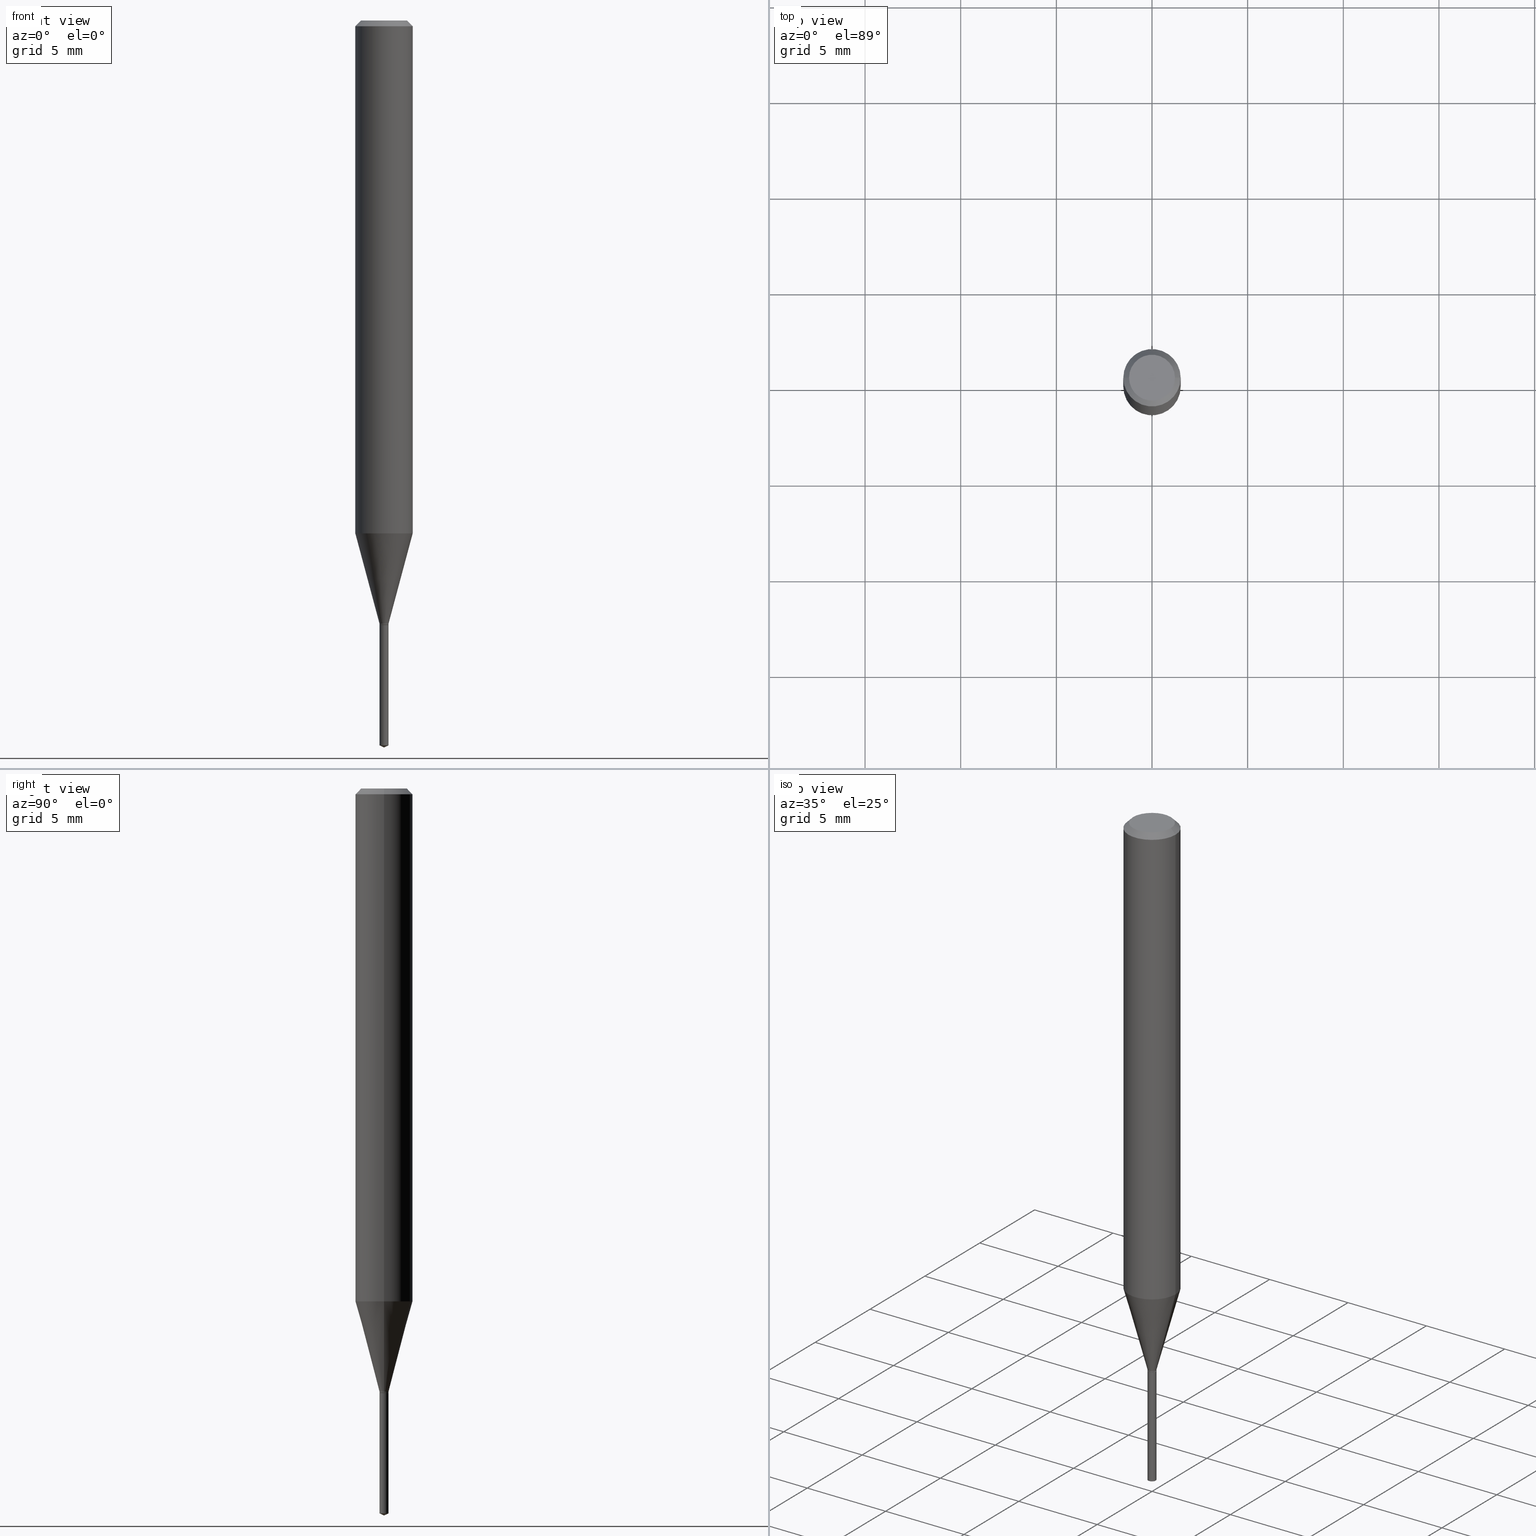
[diagram: canonical four-view strip — front | top / right | iso, engineering-drawing reading convention]
A machine part, canonical four-view strip (front | top / right | iso — engineering-drawing reading convention). The complete STEP part file that produces these views, byte-faithful:
ISO-10303-21;
HEADER;
FILE_DESCRIPTION (( 'STEP AP203' ),
    '1' );
FILE_NAME ('08271.STEP',
    '2024-04-24T14:01:58',
    ( '' ),
    ( '' ),
    'SwSTEP 2.0',
    'SolidWorks 2023',
    '' );
FILE_SCHEMA (( 'CONFIG_CONTROL_DESIGN' ));
ENDSEC;

DATA;
#1 = EDGE_CURVE ( 'NONE', #12, #188, #449, .T. ) ;
#2 = CARTESIAN_POINT ( 'NONE',  ( 3.042407741774928155E-29, -4.343751933654757151E-15, -1.244099999999999984 ) ) ;
#3 = MANIFOLD_SOLID_BREP ( 'Body-Move/Copy2[1]', #111 ) ;
#4 = ORIENTED_EDGE ( 'NONE', *, *, #333, .F. ) ;
#5 = DIRECTION ( 'NONE',  ( -6.982962677686266711E-15, -1.000000000000000000, 0.000000000000000000 ) ) ;
#6 = AXIS2_PLACEMENT_3D ( 'NONE', #260, #420, #303 ) ;
#7 = ORIENTED_EDGE ( 'NONE', *, *, #471, .F. ) ;
#8 = CIRCLE ( 'NONE', #466, 0.009249999999999999542 ) ;
#9 = ORIENTED_EDGE ( 'NONE', *, *, #266, .F. ) ;
#10 = LINE ( 'NONE', #13, #312 ) ;
#11 = CARTESIAN_POINT ( 'NONE',  ( 0.000000000000000000, 0.000000000000000000, 0.000000000000000000 ) ) ;
#12 = VERTEX_POINT ( 'NONE', #73 ) ;
#13 = CARTESIAN_POINT ( 'NONE',  ( 0.05904999999999999832, -4.463468013801466955E-16, -0.01181000000000007218 ) ) ;
#14 = CARTESIAN_POINT ( 'NONE',  ( 3.654531458052439160E-29, -5.229525959925762998E-15, -1.496099999999999985 ) ) ;
#15 = ORIENTED_EDGE ( 'NONE', *, *, #207, .T. ) ;
#16 = CARTESIAN_POINT ( 'NONE',  ( 0.05905000000000006771, -4.123439461173745257E-16, 2.879382386107503723E-30 ) ) ;
#17 = EDGE_LOOP ( 'NONE', ( #152, #402, #427, #469 ) ) ;
#18 = AXIS2_PLACEMENT_3D ( 'NONE', #366, #323, #478 ) ;
#19 = EDGE_LOOP ( 'NONE', ( #186, #131, #4, #264 ) ) ;
#20 = CIRCLE ( 'NONE', #403, 0.05905000000000013710 ) ;
#21 = DIRECTION ( 'NONE',  ( 1.000000000000000000, -6.982962677686266711E-15, 4.876185090822587894E-29 ) ) ;
#22 = EDGE_CURVE ( 'NONE', #396, #87, #117, .T. ) ;
#23 = DIRECTION ( 'NONE',  ( 1.000000000000000000, -6.982962677686266711E-15, 4.876176775795935232E-29 ) ) ;
#24 = DESIGN_CONTEXT ( 'detailed design', #281, 'design' ) ;
#25 = DIRECTION ( 'NONE',  ( 2.445468806185136597E-29, -3.491481338843145583E-15, -1.000000000000000000 ) ) ;
#26 = PERSON_AND_ORGANIZATION ( #231, #199 ) ;
#27 = EDGE_CURVE ( 'NONE', #361, #12, #263, .T. ) ;
#28 = VECTOR ( 'NONE', #297, 39.37007874015748854 ) ;
#29 = LINE ( 'NONE', #432, #334 ) ;
#30 = DIRECTION ( 'NONE',  ( -2.445468806185136597E-29, 3.491481338843145583E-15, 1.000000000000000000 ) ) ;
#31 = LINE ( 'NONE', #176, #233 ) ;
#32 = CIRCLE ( 'NONE', #404, 0.04724000000000000421 ) ;
#33 = APPROVAL ( #179, 'UNSPECIFIED' ) ;
#34 = FACE_OUTER_BOUND ( 'NONE', #84, .T. ) ;
#35 = APPROVAL ( #78, 'UNSPECIFIED' ) ;
#36 = DIRECTION ( 'NONE',  ( -2.442705339250343681E-29, 3.495438780780538895E-15, 1.000000000000000000 ) ) ;
#37 = CARTESIAN_POINT ( 'NONE',  ( 2.888098660104664204E-31, -4.123439461173780263E-17, -0.01181000000000007218 ) ) ;
#38 = ORIENTED_EDGE ( 'NONE', *, *, #275, .F. ) ;
#39 = PERSON_AND_ORGANIZATION_ROLE ( 'design_supplier' ) ;
#40 = DIRECTION ( 'NONE',  ( 1.000000000000000000, -6.982962677686250144E-15, 0.000000000000000000 ) ) ;
#41 = CARTESIAN_POINT ( 'NONE',  ( -0.008749999999999999098, -4.278930217101637721E-15, -1.244099999999999984 ) ) ;
#42 = AXIS2_PLACEMENT_3D ( 'NONE', #425, #235, #49 ) ;
#43 = ORIENTED_EDGE ( 'NONE', *, *, #333, .T. ) ;
#44 = CONICAL_SURFACE ( 'NONE', #170, 84.42940631927274353, 1.134464013796308679 ) ;
#45 = ADVANCED_FACE ( 'NONE', ( #77 ), #349, .T. ) ;
#46 = LOCAL_TIME ( 10, 1, 58.00000000000000000, #384 ) ;
#47 = ORIENTED_EDGE ( 'NONE', *, *, #213, .T. ) ;
#48 = CARTESIAN_POINT ( 'NONE',  ( 3.035560429117610036E-29, -4.333975785905995943E-15, -1.241299999999999848 ) ) ;
#49 = DIRECTION ( 'NONE',  ( 6.982962677686265922E-15, 1.000000000000000000, -3.495438780780538501E-15 ) ) ;
#50 = ORIENTED_EDGE ( 'NONE', *, *, #448, .T. ) ;
#51 =( NAMED_UNIT ( * ) PLANE_ANGLE_UNIT ( ) SI_UNIT ( $, .RADIAN. ) );
#52 = ORIENTED_EDGE ( 'NONE', *, *, #22, .T. ) ;
#53 = ORIENTED_EDGE ( 'NONE', *, *, #426, .T. ) ;
#54 = DIRECTION ( 'NONE',  ( -2.445468806185136877E-29, 3.491481338843145188E-15, 1.000000000000000000 ) ) ;
#55 = ADVANCED_FACE ( 'NONE', ( #462 ), #121, .F. ) ;
#56 = VERTEX_POINT ( 'NONE', #352 ) ;
#57 = PRODUCT_DEFINITION_FORMATION_WITH_SPECIFIED_SOURCE ( 'ANY', '', #386, .NOT_KNOWN. ) ;
#58 = CARTESIAN_POINT ( 'NONE',  ( 3.654531458052439160E-29, -5.229525959925763787E-15, -1.496099999999999985 ) ) ;
#59 = AXIS2_PLACEMENT_3D ( 'NONE', #249, #214, #414 ) ;
#60 = CIRCLE ( 'NONE', #438, 0.05904999999999999832 ) ;
#61 = DIRECTION ( 'NONE',  ( -6.982962677686266711E-15, -1.000000000000000000, 3.520397390770520529E-15 ) ) ;
#62 = ADVANCED_FACE ( 'NONE', ( #161 ), #310, .T. ) ;
#63 = DIRECTION ( 'NONE',  ( 1.000000000000000000, -6.982962677686254089E-15, 0.000000000000000000 ) ) ;
#64 = CIRCLE ( 'NONE', #92, 0.04724000000000000421 ) ;
#65 = CARTESIAN_POINT ( 'NONE',  ( 0.008749999999999999098, -4.404852857084512143E-15, -1.244099999999999984 ) ) ;
#66 = APPLICATION_PROTOCOL_DEFINITION ( 'international standard', 'config_control_design', 1994, #281 ) ;
#67 = CC_DESIGN_PERSON_AND_ORGANIZATION_ASSIGNMENT ( #100, #444, ( #102 ) ) ;
#68 = CARTESIAN_POINT ( 'NONE',  ( 3.035560429117610036E-29, -4.333975785905995943E-15, -1.241299999999999848 ) ) ;
#69 = DATE_AND_TIME ( #143, #258 ) ;
#70 = DIRECTION ( 'NONE',  ( -2.445468806185136877E-29, 3.491481338843145188E-15, 1.000000000000000000 ) ) ;
#71 = VECTOR ( 'NONE', #54, 39.37007874015748143 ) ;
#72 = CARTESIAN_POINT ( 'NONE',  ( 8.265746106709734507E-48, -1.180129479067563789E-33, -3.380025165646692144E-19 ) ) ;
#73 = CARTESIAN_POINT ( 'NONE',  ( 6.572520305784577341E-17, 0.009249999999995654060, -1.244099999999999984 ) ) ;
#74 = ORIENTED_EDGE ( 'NONE', *, *, #22, .F. ) ;
#75 = DIRECTION ( 'NONE',  ( 1.000000000000000000, -6.982962677686306154E-15, 0.000000000000000000 ) ) ;
#76 = EDGE_CURVE ( 'NONE', #155, #118, #29, .T. ) ;
#77 = FACE_OUTER_BOUND ( 'NONE', #156, .T. ) ;
#78 = APPROVAL_STATUS ( 'not_yet_approved' ) ;
#79 = EDGE_LOOP ( 'NONE', ( #9, #230, #363, #135 ) ) ;
#80 = DIRECTION ( 'NONE',  ( -1.000000000000000000, 6.982962677686266711E-15, 0.000000000000000000 ) ) ;
#81 = CIRCLE ( 'NONE', #126, 0.009249999999999999542 ) ;
#82 = DATE_TIME_ROLE ( 'classification_date' ) ;
#83 =( GEOMETRIC_REPRESENTATION_CONTEXT ( 3 ) GLOBAL_UNCERTAINTY_ASSIGNED_CONTEXT ( ( #204 ) ) GLOBAL_UNIT_ASSIGNED_CONTEXT ( ( #239, #51, #242 ) ) REPRESENTATION_CONTEXT ( 'NONE', 'WORKASPACE' ) );
#84 = EDGE_LOOP ( 'NONE', ( #315, #52, #38 ) ) ;
#85 = CARTESIAN_POINT ( 'NONE',  ( 3.041185007371835914E-29, -4.342006192985336437E-15, -1.243600000000000039 ) ) ;
#86 = VERTEX_POINT ( 'NONE', #168 ) ;
#87 = VERTEX_POINT ( 'NONE', #319 ) ;
#88 = ADVANCED_FACE ( 'NONE', ( #475 ), #283, .F. ) ;
#89 = VERTEX_POINT ( 'NONE', #442 ) ;
#90 = DIRECTION ( 'NONE',  ( -0.7071067811865453523, 2.468850131082234184E-15, -0.7071067811865496822 ) ) ;
#91 = ORIENTED_EDGE ( 'NONE', *, *, #443, .F. ) ;
#92 = AXIS2_PLACEMENT_3D ( 'NONE', #196, #278, #21 ) ;
#93 = CARTESIAN_POINT ( 'NONE',  ( 0.000000000000000000, 0.000000000000000000, 0.000000000000000000 ) ) ;
#94 = EDGE_LOOP ( 'NONE', ( #139, #220 ) ) ;
#95 = CARTESIAN_POINT ( 'NONE',  ( -0.009249999999999999542, -4.268250582848186814E-15, -1.241299999999999848 ) ) ;
#96 = ADVANCED_FACE ( 'NONE', ( #289 ), #269, .T. ) ;
#97 = ORIENTED_EDGE ( 'NONE', *, *, #370, .T. ) ;
#98 = VECTOR ( 'NONE', #108, 39.37007874015748143 ) ;
#99 = CONICAL_SURFACE ( 'NONE', #450, 0.05904999999999999832, 0.7853981633974452814 ) ;
#100 = PERSON_AND_ORGANIZATION ( #231, #199 ) ;
#101 = CARTESIAN_POINT ( 'NONE',  ( -0.04724000000000000421, 3.504923541997677355E-16, -3.380025165670481712E-19 ) ) ;
#102 = PRODUCT_DEFINITION ( 'UNKNOWN', '', #57, #24 ) ;
#103 = LINE ( 'NONE', #294, #98 ) ;
#104 = CARTESIAN_POINT ( 'NONE',  ( 3.042407741774928155E-29, -4.343751933654757151E-15, -1.244099999999999984 ) ) ;
#105 = LOCAL_TIME ( 10, 1, 58.00000000000000000, #413 ) ;
#106 = ADVANCED_FACE ( 'NONE', ( #486 ), #488, .T. ) ;
#107 = APPROVAL_ROLE ( '' ) ;
#108 = DIRECTION ( 'NONE',  ( -2.445468806185136877E-29, 3.491481338843145188E-15, 1.000000000000000000 ) ) ;
#109 = LINE ( 'NONE', #387, #175 ) ;
#110 = DIRECTION ( 'NONE',  ( -2.445468806185136597E-29, 3.491481338843145583E-15, 1.000000000000000000 ) ) ;
#111 = CLOSED_SHELL ( 'NONE', ( #256, #201, #151, #383, #55 ) ) ;
#112 = ORIENTED_EDGE ( 'NONE', *, *, #327, .F. ) ;
#113 = DATE_AND_TIME ( #457, #46 ) ;
#114 = ORIENTED_EDGE ( 'NONE', *, *, #370, .F. ) ;
#115 = EDGE_CURVE ( 'NONE', #118, #89, #103, .T. ) ;
#116 = FACE_OUTER_BOUND ( 'NONE', #313, .T. ) ;
#117 = LINE ( 'NONE', #14, #205 ) ;
#118 = VERTEX_POINT ( 'NONE', #481 ) ;
#119 = DIRECTION ( 'NONE',  ( 2.445468806185136597E-29, -3.491481338843145583E-15, -1.000000000000000000 ) ) ;
#120 = APPLICATION_CONTEXT ( 'configuration controlled 3d designs of mechanical parts and assemblies' ) ;
#121 = PLANE ( 'NONE',  #42 ) ;
#122 = SECURITY_CLASSIFICATION_LEVEL ( 'unclassified' ) ;
#123 = VERTEX_POINT ( 'NONE', #101 ) ;
#124 = DIRECTION ( 'NONE',  ( -2.445468806185136597E-29, 3.491481338843145583E-15, 1.000000000000000000 ) ) ;
#125 = CONICAL_SURFACE ( 'NONE', #163, 0.008749999999999999098, 0.7853981633975496424 ) ;
#126 = AXIS2_PLACEMENT_3D ( 'NONE', #142, #292, #429 ) ;
#127 = CC_DESIGN_PERSON_AND_ORGANIZATION_ASSIGNMENT ( #267, #224, ( #428 ) ) ;
#128 = AXIS2_PLACEMENT_3D ( 'NONE', #416, #391, #309 ) ;
#129 = VERTEX_POINT ( 'NONE', #324 ) ;
#130 = DIRECTION ( 'NONE',  ( -6.982962677686266711E-15, -1.000000000000000000, 0.000000000000000000 ) ) ;
#131 = ORIENTED_EDGE ( 'NONE', *, *, #401, .T. ) ;
#132 = DIRECTION ( 'NONE',  ( -2.442705339250343681E-29, 3.495438780780538895E-15, 1.000000000000000000 ) ) ;
#133 = AXIS2_PLACEMENT_3D ( 'NONE', #11, #158, #307 ) ;
#134 = ADVANCED_FACE ( 'NONE', ( #215 ), #125, .T. ) ;
#135 = ORIENTED_EDGE ( 'NONE', *, *, #364, .F. ) ;
#136 = DIRECTION ( 'NONE',  ( 1.000000000000000000, -6.982962677686254089E-15, 0.000000000000000000 ) ) ;
#137 = CARTESIAN_POINT ( 'NONE',  ( 2.888098660104664204E-31, -4.123439461173780263E-17, -0.01181000000000007218 ) ) ;
#138 = EDGE_CURVE ( 'NONE', #353, #155, #216, .T. ) ;
#139 = ORIENTED_EDGE ( 'NONE', *, *, #218, .F. ) ;
#140 = AXIS2_PLACEMENT_3D ( 'NONE', #137, #25, #321 ) ;
#141 = ADVANCED_FACE ( 'NONE', ( #487 ), #209, .T. ) ;
#142 = CARTESIAN_POINT ( 'NONE',  ( 3.042407741774928155E-29, -4.343751933654757151E-15, -1.244099999999999984 ) ) ;
#143 = CALENDAR_DATE ( 2024, 24, 4 ) ;
#144 = AXIS2_PLACEMENT_3D ( 'NONE', #104, #251, #407 ) ;
#145 = DIRECTION ( 'NONE',  ( 1.000000000000000000, -6.982962677686266711E-15, 4.876176775795935232E-29 ) ) ;
#146 = CC_DESIGN_APPROVAL ( #33, ( #57 ) ) ;
#147 = LOCAL_TIME ( 10, 1, 58.00000000000000000, #272 ) ;
#148 = CARTESIAN_POINT ( 'NONE',  ( 3.647433254357660614E-29, -5.209525470094620805E-15, -1.491786654162066128 ) ) ;
#149 = DIRECTION ( 'NONE',  ( -2.445468806185136597E-29, 3.491481338843145583E-15, 1.000000000000000000 ) ) ;
#150 = ORIENTED_EDGE ( 'NONE', *, *, #76, .T. ) ;
#151 = ADVANCED_FACE ( 'NONE', ( #34 ), #293, .T. ) ;
#152 = ORIENTED_EDGE ( 'NONE', *, *, #207, .F. ) ;
#153 = DIRECTION ( 'NONE',  ( 1.000000000000000000, -6.982962677686266711E-15, 4.876185090822587894E-29 ) ) ;
#154 = AXIS2_PLACEMENT_3D ( 'NONE', #348, #124, #23 ) ;
#155 = VERTEX_POINT ( 'NONE', #65 ) ;
#156 = EDGE_LOOP ( 'NONE', ( #476, #53, #50, #434 ) ) ;
#157 = LINE ( 'NONE', #461, #28 ) ;
#158 = DIRECTION ( 'NONE',  ( -2.445468806185136597E-29, 3.491481338843145583E-15, 1.000000000000000000 ) ) ;
#159 = CARTESIAN_POINT ( 'NONE',  ( -0.009249999999999999542, -4.272265786387857456E-15, -1.243600000000000039 ) ) ;
#160 = APPROVAL ( #415, 'UNSPECIFIED' ) ;
#161 = FACE_OUTER_BOUND ( 'NONE', #463, .T. ) ;
#162 = ORIENTED_EDGE ( 'NONE', *, *, #76, .F. ) ;
#163 = AXIS2_PLACEMENT_3D ( 'NONE', #291, #254, #178 ) ;
#164 = EDGE_LOOP ( 'NONE', ( #247, #198, #150, #91 ) ) ;
#165 = DIRECTION ( 'NONE',  ( -2.445468806185136597E-29, 3.491481338843145583E-15, 1.000000000000000000 ) ) ;
#166 = EDGE_CURVE ( 'NONE', #87, #188, #208, .T. ) ;
#167 = DIRECTION ( 'NONE',  ( -6.982962677686266711E-15, -1.000000000000000000, 0.000000000000000000 ) ) ;
#168 = CARTESIAN_POINT ( 'NONE',  ( -0.05905000000000013710, -3.265487090077642716E-15, -1.055443869783069699 ) ) ;
#169 = AXIS2_PLACEMENT_3D ( 'NONE', #325, #483, #371 ) ;
#170 = AXIS2_PLACEMENT_3D ( 'NONE', #376, #422, #257 ) ;
#171 = FACE_OUTER_BOUND ( 'NONE', #392, .T. ) ;
#172 = COORDINATED_UNIVERSAL_TIME_OFFSET ( 5, 0, .BEHIND. ) ;
#173 = ADVANCED_FACE ( 'NONE', ( #174 ), #250, .T. ) ;
#174 = FACE_OUTER_BOUND ( 'NONE', #430, .T. ) ;
#175 = VECTOR ( 'NONE', #268, 39.37007874015748854 ) ;
#176 = CARTESIAN_POINT ( 'NONE',  ( -0.05905000000000006771, 4.195754854663396409E-16, -2.904631170795525045E-30 ) ) ;
#177 = EDGE_CURVE ( 'NONE', #86, #236, #31, .T. ) ;
#178 = DIRECTION ( 'NONE',  ( 1.000000000000000000, -6.982962677686250144E-15, 0.000000000000000000 ) ) ;
#179 = APPROVAL_STATUS ( 'not_yet_approved' ) ;
#180 = VECTOR ( 'NONE', #437, 39.37007874015748854 ) ;
#181 = DIRECTION ( 'NONE',  ( -2.438088387897960049E-29, 3.491481338843145188E-15, 1.000000000000000000 ) ) ;
#182 = AXIS2_PLACEMENT_3D ( 'NONE', #48, #464, #222 ) ;
#183 = CC_DESIGN_APPROVAL ( #35, ( #428 ) ) ;
#184 = DIRECTION ( 'NONE',  ( -2.445468806185136597E-29, 3.491481338843145583E-15, 1.000000000000000000 ) ) ;
#185 = ADVANCED_FACE ( 'NONE', ( #485 ), #367, .T. ) ;
#186 = ORIENTED_EDGE ( 'NONE', *, *, #327, .T. ) ;
#187 = FACE_OUTER_BOUND ( 'NONE', #17, .T. ) ;
#188 = VERTEX_POINT ( 'NONE', #373 ) ;
#189 = FACE_OUTER_BOUND ( 'NONE', #79, .T. ) ;
#190 = AXIS2_PLACEMENT_3D ( 'NONE', #375, #405, #61 ) ;
#191 = ORIENTED_EDGE ( 'NONE', *, *, #252, .T. ) ;
#192 = EDGE_LOOP ( 'NONE', ( #191, #465, #112, #421 ) ) ;
#193 = EDGE_CURVE ( 'NONE', #188, #12, #81, .T. ) ;
#194 = DIRECTION ( 'NONE',  ( -2.445468806185136597E-29, 3.491481338843145583E-15, 1.000000000000000000 ) ) ;
#195 = ORIENTED_EDGE ( 'NONE', *, *, #246, .T. ) ;
#196 = CARTESIAN_POINT ( 'NONE',  ( 8.265746106709734507E-48, -1.180129479067563789E-33, -3.380025165646692144E-19 ) ) ;
#197 = ORIENTED_EDGE ( 'NONE', *, *, #246, .F. ) ;
#198 = ORIENTED_EDGE ( 'NONE', *, *, #138, .T. ) ;
#199 = ORGANIZATION ( 'UNSPECIFIED', 'UNSPECIFIED', '' ) ;
#200 = DIRECTION ( 'NONE',  ( 1.000000000000000000, -6.982962677686264344E-15, 0.000000000000000000 ) ) ;
#201 = ADVANCED_FACE ( 'NONE', ( #116 ), #44, .T. ) ;
#202 = DIRECTION ( 'NONE',  ( 1.000000000000000000, 0.000000000000000000, 0.000000000000000000 ) ) ;
#203 = DIRECTION ( 'NONE',  ( 0.7071067811866191821, -2.468850131083007662E-15, 0.7071067811864758523 ) ) ;
#204 = UNCERTAINTY_MEASURE_WITH_UNIT (LENGTH_MEASURE( 1.000000000000000082E-05 ), #239, 'distance_accuracy_value', 'NONE');
#205 = VECTOR ( 'NONE', #223, 39.37007874015748143 ) ;
#206 = AXIS2_PLACEMENT_3D ( 'NONE', #316, #285, #200 ) ;
#207 = EDGE_CURVE ( 'NONE', #129, #225, #10, .T. ) ;
#208 = LINE ( 'NONE', #369, #279 ) ;
#209 = CYLINDRICAL_SURFACE ( 'NONE', #408, 0.009249999999999999542 ) ;
#210 = CIRCLE ( 'NONE', #206, 0.05905000000000013710 ) ;
#211 = APPROVAL_PERSON_ORGANIZATION ( #468, #35, #240 ) ;
#212 = CARTESIAN_POINT ( 'NONE',  ( 0.000000000000000000, 0.000000000000000000, 0.000000000000000000 ) ) ;
#213 = EDGE_CURVE ( 'NONE', #89, #274, #157, .T. ) ;
#214 = DIRECTION ( 'NONE',  ( -2.445468806185136597E-29, 3.491481338843145583E-15, 1.000000000000000000 ) ) ;
#215 = FACE_OUTER_BOUND ( 'NONE', #248, .T. ) ;
#216 = CIRCLE ( 'NONE', #59, 0.008749999999999999098 ) ;
#217 = CIRCLE ( 'NONE', #182, 0.009249999999999999542 ) ;
#218 = EDGE_CURVE ( 'NONE', #155, #353, #326, .T. ) ;
#219 = PLANE ( 'NONE',  #458 ) ;
#220 = ORIENTED_EDGE ( 'NONE', *, *, #138, .F. ) ;
#221 = PERSON_AND_ORGANIZATION ( #231, #199 ) ;
#222 = DIRECTION ( 'NONE',  ( 1.000000000000000000, -6.982962677686254089E-15, 0.000000000000000000 ) ) ;
#223 = DIRECTION ( 'NONE',  ( -6.328713451373353601E-15, -0.9063077870366461619, 0.4226182617407076014 ) ) ;
#224 = PERSON_AND_ORGANIZATION_ROLE ( 'classification_officer' ) ;
#225 = VERTEX_POINT ( 'NONE', #455 ) ;
#226 = CYLINDRICAL_SURFACE ( 'NONE', #128, 0.009249999999999999542 ) ;
#227 = CARTESIAN_POINT ( 'NONE',  ( 6.572520305783968439E-17, 0.009249999999995655794, -1.244099999999999984 ) ) ;
#228 = ADVANCED_FACE ( 'NONE', ( #187 ), #99, .T. ) ;
#229 = DATE_AND_TIME ( #360, #147 ) ;
#230 = ORIENTED_EDGE ( 'NONE', *, *, #443, .T. ) ;
#231 = PERSON ( 'UNSPECIFIED', 'UNSPECIFIED', 'UNSPECIFIED', ('UNSPECIFIED'), ('UNSPECIFIED'), ('UNSPECIFIED') ) ;
#232 = FACE_OUTER_BOUND ( 'NONE', #385, .T. ) ;
#233 = VECTOR ( 'NONE', #328, 39.37007874015748143 ) ;
#234 = CIRCLE ( 'NONE', #372, 0.009249999999999999542 ) ;
#235 = DIRECTION ( 'NONE',  ( 2.442705339250343681E-29, -3.495438780780538501E-15, -1.000000000000000000 ) ) ;
#236 = VERTEX_POINT ( 'NONE', #424 ) ;
#237 = CARTESIAN_POINT ( 'NONE',  ( 6.572520305784574876E-17, 0.009249999999994790167, -1.491786654162066128 ) ) ;
#238 = ORIENTED_EDGE ( 'NONE', *, *, #426, .F. ) ;
#239 =( CONVERSION_BASED_UNIT ( 'INCH', #467 ) LENGTH_UNIT ( ) NAMED_UNIT ( #330 ) );
#240 = APPROVAL_ROLE ( '' ) ;
#241 = ORIENTED_EDGE ( 'NONE', *, *, #166, .T. ) ;
#242 =( NAMED_UNIT ( * ) SI_UNIT ( $, .STERADIAN. ) SOLID_ANGLE_UNIT ( ) );
#243 = CC_DESIGN_PERSON_AND_ORGANIZATION_ASSIGNMENT ( #26, #322, ( #386 ) ) ;
#244 = CIRCLE ( 'NONE', #489, 0.05904999999999999832 ) ;
#245 = LINE ( 'NONE', #95, #180 ) ;
#246 = EDGE_CURVE ( 'NONE', #225, #236, #60, .T. ) ;
#247 = ORIENTED_EDGE ( 'NONE', *, *, #454, .F. ) ;
#248 = EDGE_LOOP ( 'NONE', ( #350, #389, #460, #162 ) ) ;
#249 = CARTESIAN_POINT ( 'NONE',  ( 3.042407741774928155E-29, -4.343751933654757151E-15, -1.244099999999999984 ) ) ;
#250 = CYLINDRICAL_SURFACE ( 'NONE', #169, 0.05905000000000006771 ) ;
#251 = DIRECTION ( 'NONE',  ( -2.445468806185136597E-29, 3.491481338843145583E-15, 1.000000000000000000 ) ) ;
#252 = EDGE_CURVE ( 'NONE', #118, #340, #336, .T. ) ;
#253 = APPROVAL_PERSON_ORGANIZATION ( #451, #33, #107 ) ;
#254 = DIRECTION ( 'NONE',  ( -2.445468806185136597E-29, 3.491481338843145583E-15, 1.000000000000000000 ) ) ;
#255 = PERSON_AND_ORGANIZATION ( #231, #199 ) ;
#256 = ADVANCED_FACE ( 'NONE', ( #232 ), #226, .T. ) ;
#257 = DIRECTION ( 'NONE',  ( -6.982962677686266711E-15, -1.000000000000000000, 3.520397390770520529E-15 ) ) ;
#258 = LOCAL_TIME ( 10, 1, 58.00000000000000000, #410 ) ;
#259 = DIRECTION ( 'NONE',  ( -2.445468806185136597E-29, 3.491481338843145583E-15, 1.000000000000000000 ) ) ;
#260 = CARTESIAN_POINT ( 'NONE',  ( 3.042407741774928155E-29, -4.343751933654757151E-15, -1.244099999999999984 ) ) ;
#261 = EDGE_LOOP ( 'NONE', ( #412, #456, #47, #238 ) ) ;
#262 = DIRECTION ( 'NONE',  ( 1.000000000000000000, -6.982962677686264344E-15, 0.000000000000000000 ) ) ;
#263 = LINE ( 'NONE', #227, #287 ) ;
#264 = ORIENTED_EDGE ( 'NONE', *, *, #213, .F. ) ;
#265 = DIRECTION ( 'NONE',  ( 0.7071067811865453523, -7.319954787623248157E-15, -0.7071067811865496822 ) ) ;
#266 = EDGE_CURVE ( 'NONE', #340, #56, #459, .T. ) ;
#267 = PERSON_AND_ORGANIZATION ( #231, #199 ) ;
#268 = DIRECTION ( 'NONE',  ( 6.439704144417008265E-15, 0.9063077870366490485, 0.4226182617407012732 ) ) ;
#269 = CONICAL_SURFACE ( 'NONE', #377, 0.009249999999999999542, 0.2617993877991499074 ) ;
#270 = AXIS2_PLACEMENT_3D ( 'NONE', #302, #259, #40 ) ;
#271 = ORIENTED_EDGE ( 'NONE', *, *, #418, .T. ) ;
#272 = COORDINATED_UNIVERSAL_TIME_OFFSET ( 5, 0, .BEHIND. ) ;
#273 = CARTESIAN_POINT ( 'NONE',  ( -0.05904999999999999832, 3.711095515056362547E-16, -0.01181000000000007218 ) ) ;
#274 = VERTEX_POINT ( 'NONE', #452 ) ;
#275 = EDGE_CURVE ( 'NONE', #361, #87, #399, .T. ) ;
#276 = LINE ( 'NONE', #16, #71 ) ;
#277 = ORIENTED_EDGE ( 'NONE', *, *, #193, .T. ) ;
#278 = DIRECTION ( 'NONE',  ( -2.445468806185136597E-29, 3.491481338843145583E-15, 1.000000000000000000 ) ) ;
#279 = VECTOR ( 'NONE', #406, 39.37007874015748143 ) ;
#280 = AXIS2_PLACEMENT_3D ( 'NONE', #148, #36, #5 ) ;
#281 = APPLICATION_CONTEXT ( 'configuration controlled 3d designs of mechanical parts and assemblies' ) ;
#282 = MECHANICAL_CONTEXT ( 'NONE', #120, 'mechanical' ) ;
#283 = PLANE ( 'NONE',  #18 ) ;
#284 = EDGE_CURVE ( 'NONE', #396, #361, #109, .T. ) ;
#285 = DIRECTION ( 'NONE',  ( -2.445468806185136597E-29, 3.491481338843145583E-15, 1.000000000000000000 ) ) ;
#286 = APPROVAL_DATE_TIME ( #480, #160 ) ;
#287 = VECTOR ( 'NONE', #423, 39.37007874015748143 ) ;
#288 = CIRCLE ( 'NONE', #320, 0.009249999999999999542 ) ;
#289 = FACE_OUTER_BOUND ( 'NONE', #261, .T. ) ;
#290 = ADVANCED_FACE ( 'NONE', ( #419 ), #219, .F. ) ;
#291 = CARTESIAN_POINT ( 'NONE',  ( 3.042407741774928155E-29, -4.343751933654757151E-15, -1.244099999999999984 ) ) ;
#292 = DIRECTION ( 'NONE',  ( -2.442705339250343681E-29, 3.495438780780538895E-15, 1.000000000000000000 ) ) ;
#293 = CONICAL_SURFACE ( 'NONE', #190, 84.42940631927274353, 1.134464013796308679 ) ;
#294 = CARTESIAN_POINT ( 'NONE',  ( 0.009249999999999999542, -6.459240476859796165E-17, 4.510463517611240048E-31 ) ) ;
#295 = CC_DESIGN_PERSON_AND_ORGANIZATION_ASSIGNMENT ( #221, #296, ( #57 ) ) ;
#296 = PERSON_AND_ORGANIZATION_ROLE ( 'creator' ) ;
#297 = DIRECTION ( 'NONE',  ( 0.2588190451025211836, 1.565188264969622559E-15, 0.9659258262890679791 ) ) ;
#298 = PRODUCT_DEFINITION_SHAPE ( 'NONE', 'NONE',  #102 ) ;
#299 = DIRECTION ( 'NONE',  ( -2.445468806185136597E-29, 3.491481338843145583E-15, 1.000000000000000000 ) ) ;
#300 = ORIENTED_EDGE ( 'NONE', *, *, #314, .F. ) ;
#301 = AXIS2_PLACEMENT_3D ( 'NONE', #365, #311, #130 ) ;
#302 = CARTESIAN_POINT ( 'NONE',  ( 3.042407741774928155E-29, -4.343751933654757151E-15, -1.244099999999999984 ) ) ;
#303 = DIRECTION ( 'NONE',  ( -6.982962677686266711E-15, -1.000000000000000000, 0.000000000000000000 ) ) ;
#304 = EDGE_LOOP ( 'NONE', ( #271, #436 ) ) ;
#305 = EDGE_CURVE ( 'NONE', #236, #225, #244, .T. ) ;
#306 = CARTESIAN_POINT ( 'NONE',  ( 2.888098660104664204E-31, -4.123439461173780263E-17, -0.01181000000000007218 ) ) ;
#307 = DIRECTION ( 'NONE',  ( 1.000000000000000000, -6.982962677686266711E-15, 4.876176775795936353E-29 ) ) ;
#308 = ORIENTED_EDGE ( 'NONE', *, *, #27, .F. ) ;
#309 = DIRECTION ( 'NONE',  ( -6.982962677686266711E-15, -1.000000000000000000, 0.000000000000000000 ) ) ;
#310 = CONICAL_SURFACE ( 'NONE', #140, 0.05904999999999999832, 0.7853981633974452814 ) ;
#311 = DIRECTION ( 'NONE',  ( -2.442705339250343681E-29, 3.495438780780538895E-15, 1.000000000000000000 ) ) ;
#312 = VECTOR ( 'NONE', #265, 39.37007874015748143 ) ;
#313 = EDGE_LOOP ( 'NONE', ( #74, #345, #114 ) ) ;
#314 = EDGE_CURVE ( 'NONE', #129, #123, #32, .T. ) ;
#315 = ORIENTED_EDGE ( 'NONE', *, *, #284, .F. ) ;
#316 = CARTESIAN_POINT ( 'NONE',  ( 2.581055060233824275E-29, -3.685062575543982998E-15, -1.055443869783069699 ) ) ;
#317 = APPLICATION_PROTOCOL_DEFINITION ( 'international standard', 'config_control_design', 1994, #120 ) ;
#318 = CYLINDRICAL_SURFACE ( 'NONE', #301, 0.009249999999999999542 ) ;
#319 = CARTESIAN_POINT ( 'NONE',  ( -6.459240476856148916E-17, -0.009250000000005212386, -1.491786654162066128 ) ) ;
#320 = AXIS2_PLACEMENT_3D ( 'NONE', #441, #132, #167 ) ;
#321 = DIRECTION ( 'NONE',  ( -1.000000000000000000, 6.982962677686266711E-15, 0.000000000000000000 ) ) ;
#322 = PERSON_AND_ORGANIZATION_ROLE ( 'design_owner' ) ;
#323 = DIRECTION ( 'NONE',  ( 2.438088387897960049E-29, -3.491481338843145188E-15, -1.000000000000000000 ) ) ;
#324 = CARTESIAN_POINT ( 'NONE',  ( 0.04724000000000000421, -3.852183633974369345E-16, -3.380025165621689721E-19 ) ) ;
#325 = CARTESIAN_POINT ( 'NONE',  ( 0.000000000000000000, 0.000000000000000000, 0.000000000000000000 ) ) ;
#326 = CIRCLE ( 'NONE', #270, 0.008749999999999999098 ) ;
#327 = EDGE_CURVE ( 'NONE', #89, #56, #217, .T. ) ;
#328 = DIRECTION ( 'NONE',  ( -2.445468806185136877E-29, 3.491481338843145188E-15, 1.000000000000000000 ) ) ;
#329 = CARTESIAN_POINT ( 'NONE',  ( 3.035560429117610036E-29, -4.333975785905995943E-15, -1.241299999999999848 ) ) ;
#330 = DIMENSIONAL_EXPONENTS ( 1.000000000000000000, 0.000000000000000000, 0.000000000000000000, 0.000000000000000000, 0.000000000000000000, 0.000000000000000000, 0.000000000000000000 ) ;
#331 = APPROVAL_ROLE ( '' ) ;
#332 = MANIFOLD_SOLID_BREP ( 'Body-Move/Copy2[2]', #346 ) ;
#333 = EDGE_CURVE ( 'NONE', #274, #86, #20, .T. ) ;
#334 = VECTOR ( 'NONE', #203, 39.37007874015748143 ) ;
#335 = DATE_AND_TIME ( #453, #105 ) ;
#336 = CIRCLE ( 'NONE', #446, 0.009249999999999999542 ) ;
#337 = DIRECTION ( 'NONE',  ( 1.000000000000000000, -6.982962677686266711E-15, 0.000000000000000000 ) ) ;
#338 = CALENDAR_DATE ( 2024, 24, 4 ) ;
#339 = DIRECTION ( 'NONE',  ( 1.000000000000000000, -6.982962677686266711E-15, 0.000000000000000000 ) ) ;
#340 = VERTEX_POINT ( 'NONE', #159 ) ;
#341 = DIRECTION ( 'NONE',  ( 1.000000000000000000, -6.982962677686265922E-15, 4.876176775795935793E-29 ) ) ;
#342 = ORIENTED_EDGE ( 'NONE', *, *, #1, .T. ) ;
#343 = SHAPE_DEFINITION_REPRESENTATION ( #298, #433 ) ;
#344 = PRODUCT_RELATED_PRODUCT_CATEGORY ( 'detail', '', ( #386 ) ) ;
#345 = ORIENTED_EDGE ( 'NONE', *, *, #284, .T. ) ;
#346 = CLOSED_SHELL ( 'NONE', ( #134, #62, #173, #106, #141, #355, #96, #45, #228, #88, #290, #185 ) ) ;
#347 = VECTOR ( 'NONE', #70, 39.37007874015748143 ) ;
#348 = CARTESIAN_POINT ( 'NONE',  ( 0.000000000000000000, 0.000000000000000000, 0.000000000000000000 ) ) ;
#349 = CYLINDRICAL_SURFACE ( 'NONE', #133, 0.05905000000000006771 ) ;
#350 = ORIENTED_EDGE ( 'NONE', *, *, #218, .T. ) ;
#351 = CYLINDRICAL_SURFACE ( 'NONE', #154, 0.009249999999999999542 ) ;
#352 = CARTESIAN_POINT ( 'NONE',  ( -0.009249999999999999542, -4.272265786387857456E-15, -1.241299999999999848 ) ) ;
#353 = VERTEX_POINT ( 'NONE', #41 ) ;
#354 = DIRECTION ( 'NONE',  ( -0.7071067811866191821, 7.493145998870612907E-15, 0.7071067811864758523 ) ) ;
#355 = ADVANCED_FACE ( 'NONE', ( #189 ), #351, .T. ) ;
#356 = EDGE_LOOP ( 'NONE', ( #277, #342 ) ) ;
#357 = ORIENTED_EDGE ( 'NONE', *, *, #275, .T. ) ;
#358 = LINE ( 'NONE', #398, #359 ) ;
#359 = VECTOR ( 'NONE', #354, 39.37007874015748143 ) ;
#360 = CALENDAR_DATE ( 2024, 24, 4 ) ;
#361 = VERTEX_POINT ( 'NONE', #237 ) ;
#362 = DIRECTION ( 'NONE',  ( 1.000000000000000000, -6.982962677686306154E-15, 0.000000000000000000 ) ) ;
#363 = ORIENTED_EDGE ( 'NONE', *, *, #115, .T. ) ;
#364 = EDGE_CURVE ( 'NONE', #56, #89, #234, .T. ) ;
#365 = CARTESIAN_POINT ( 'NONE',  ( 3.042407741774928155E-29, -4.343751933654757151E-15, -1.244099999999999984 ) ) ;
#366 = CARTESIAN_POINT ( 'NONE',  ( 4.132873053354867254E-48, -5.900647395337818946E-34, -1.690012582823346072E-19 ) ) ;
#367 = CONICAL_SURFACE ( 'NONE', #144, 0.008749999999999999098, 0.7853981633975496424 ) ;
#368 = ORIENTED_EDGE ( 'NONE', *, *, #177, .T. ) ;
#369 = CARTESIAN_POINT ( 'NONE',  ( -6.459240476856754120E-17, -0.009250000000004345024, -1.244099999999999984 ) ) ;
#370 = EDGE_CURVE ( 'NONE', #87, #361, #288, .T. ) ;
#371 = DIRECTION ( 'NONE',  ( 1.000000000000000000, -6.982962677686266711E-15, 4.876176775795936353E-29 ) ) ;
#372 = AXIS2_PLACEMENT_3D ( 'NONE', #440, #165, #136 ) ;
#373 = CARTESIAN_POINT ( 'NONE',  ( -6.459240476856754120E-17, -0.009250000000004345024, -1.244099999999999984 ) ) ;
#374 = DATE_TIME_ROLE ( 'creation_date' ) ;
#375 = CARTESIAN_POINT ( 'NONE',  ( -9.251153205802309711E-28, 1.323910975243184100E-13, 37.87397874015748300 ) ) ;
#376 = CARTESIAN_POINT ( 'NONE',  ( -9.251153205802309711E-28, 1.323910975243184100E-13, 37.87397874015748300 ) ) ;
#377 = AXIS2_PLACEMENT_3D ( 'NONE', #68, #447, #63 ) ;
#378 = APPROVAL_DATE_TIME ( #335, #33 ) ;
#379 = CARTESIAN_POINT ( 'NONE',  ( 2.888098660104664204E-31, -4.123439461173780263E-17, -0.01181000000000007218 ) ) ;
#380 = ORIENTED_EDGE ( 'NONE', *, *, #27, .T. ) ;
#381 = PERSON_AND_ORGANIZATION ( #231, #199 ) ;
#382 = CARTESIAN_POINT ( 'NONE',  ( 2.581055060233824275E-29, -3.685062575543982998E-15, -1.055443869783069699 ) ) ;
#383 = ADVANCED_FACE ( 'NONE', ( #171 ), #318, .T. ) ;
#384 = COORDINATED_UNIVERSAL_TIME_OFFSET ( 5, 0, .BEHIND. ) ;
#385 = EDGE_LOOP ( 'NONE', ( #97, #380, #388, #393 ) ) ;
#386 = PRODUCT ( '08271', '08271', '', ( #282 ) ) ;
#387 = CARTESIAN_POINT ( 'NONE',  ( 3.661467811395460725E-29, -5.219679052897141195E-15, -1.496099999999999985 ) ) ;
#388 = ORIENTED_EDGE ( 'NONE', *, *, #193, .F. ) ;
#389 = ORIENTED_EDGE ( 'NONE', *, *, #454, .T. ) ;
#390 = VECTOR ( 'NONE', #90, 39.37007874015748143 ) ;
#391 = DIRECTION ( 'NONE',  ( -2.442705339250343681E-29, 3.495438780780538895E-15, 1.000000000000000000 ) ) ;
#392 = EDGE_LOOP ( 'NONE', ( #308, #357, #241, #397 ) ) ;
#393 = ORIENTED_EDGE ( 'NONE', *, *, #166, .F. ) ;
#394 = CC_DESIGN_PERSON_AND_ORGANIZATION_ASSIGNMENT ( #381, #39, ( #57 ) ) ;
#395 = DIRECTION ( 'NONE',  ( -2.445468806185136597E-29, 3.491481338843145583E-15, 1.000000000000000000 ) ) ;
#396 = VERTEX_POINT ( 'NONE', #58 ) ;
#397 = ORIENTED_EDGE ( 'NONE', *, *, #1, .F. ) ;
#398 = CARTESIAN_POINT ( 'NONE',  ( -0.008749999999999999098, -4.281579444275748922E-15, -1.244099999999999984 ) ) ;
#399 = CIRCLE ( 'NONE', #280, 0.009249999999999999542 ) ;
#400 = DIRECTION ( 'NONE',  ( 0.000000000000000000, 0.000000000000000000, 1.000000000000000000 ) ) ;
#401 = EDGE_CURVE ( 'NONE', #56, #86, #245, .T. ) ;
#402 = ORIENTED_EDGE ( 'NONE', *, *, #418, .F. ) ;
#403 = AXIS2_PLACEMENT_3D ( 'NONE', #382, #194, #262 ) ;
#404 = AXIS2_PLACEMENT_3D ( 'NONE', #72, #299, #153 ) ;
#405 = DIRECTION ( 'NONE',  ( -2.442705339250343681E-29, 3.495438780780538895E-15, 1.000000000000000000 ) ) ;
#406 = DIRECTION ( 'NONE',  ( -2.442705339250343401E-29, 3.495438780780538501E-15, 1.000000000000000000 ) ) ;
#407 = DIRECTION ( 'NONE',  ( 1.000000000000000000, -6.982962677686250144E-15, 0.000000000000000000 ) ) ;
#408 = AXIS2_PLACEMENT_3D ( 'NONE', #212, #30, #145 ) ;
#409 = APPROVAL_PERSON_ORGANIZATION ( #255, #160, #331 ) ;
#410 = COORDINATED_UNIVERSAL_TIME_OFFSET ( 5, 0, .BEHIND. ) ;
#411 = DIRECTION ( 'NONE',  ( 1.000000000000000000, -6.982962677686254089E-15, 0.000000000000000000 ) ) ;
#412 = ORIENTED_EDGE ( 'NONE', *, *, #401, .F. ) ;
#413 = COORDINATED_UNIVERSAL_TIME_OFFSET ( 5, 0, .BEHIND. ) ;
#414 = DIRECTION ( 'NONE',  ( 1.000000000000000000, -6.982962677686250144E-15, 0.000000000000000000 ) ) ;
#415 = APPROVAL_STATUS ( 'not_yet_approved' ) ;
#416 = CARTESIAN_POINT ( 'NONE',  ( 3.042407741774928155E-29, -4.343751933654757151E-15, -1.244099999999999984 ) ) ;
#417 = AXIS2_PLACEMENT_3D ( 'NONE', #93, #400, #202 ) ;
#418 = EDGE_CURVE ( 'NONE', #123, #129, #64, .T. ) ;
#419 = FACE_OUTER_BOUND ( 'NONE', #94, .T. ) ;
#420 = DIRECTION ( 'NONE',  ( -2.442705339250343681E-29, 3.495438780780538895E-15, 1.000000000000000000 ) ) ;
#421 = ORIENTED_EDGE ( 'NONE', *, *, #115, .F. ) ;
#422 = DIRECTION ( 'NONE',  ( -2.442705339250343681E-29, 3.495438780780538895E-15, 1.000000000000000000 ) ) ;
#423 = DIRECTION ( 'NONE',  ( -2.442705339250343401E-29, 3.495438780780538501E-15, 1.000000000000000000 ) ) ;
#424 = CARTESIAN_POINT ( 'NONE',  ( -0.05904999999999999832, -1.443572999611519884E-15, -0.01181000000000007218 ) ) ;
#425 = CARTESIAN_POINT ( 'NONE',  ( 3.042407741774928155E-29, -4.343751933654757151E-15, -1.244099999999999984 ) ) ;
#426 = EDGE_CURVE ( 'NONE', #86, #274, #210, .T. ) ;
#427 = ORIENTED_EDGE ( 'NONE', *, *, #471, .T. ) ;
#428 = SECURITY_CLASSIFICATION ( '', '', #122 ) ;
#429 = DIRECTION ( 'NONE',  ( -6.982962677686266711E-15, -1.000000000000000000, 0.000000000000000000 ) ) ;
#430 = EDGE_LOOP ( 'NONE', ( #43, #368, #197, #431 ) ) ;
#431 = ORIENTED_EDGE ( 'NONE', *, *, #448, .F. ) ;
#432 = CARTESIAN_POINT ( 'NONE',  ( 0.008749999999999999098, -4.404852857084512143E-15, -1.244099999999999984 ) ) ;
#433 = ADVANCED_BREP_SHAPE_REPRESENTATION ( '08271', ( #3, #332, #417 ), #83 ) ;
#434 = ORIENTED_EDGE ( 'NONE', *, *, #305, .F. ) ;
#435 = APPROVAL_DATE_TIME ( #229, #35 ) ;
#436 = ORIENTED_EDGE ( 'NONE', *, *, #314, .T. ) ;
#437 = DIRECTION ( 'NONE',  ( -0.2588190451025211836, 5.211531920934547886E-15, 0.9659258262890679791 ) ) ;
#438 = AXIS2_PLACEMENT_3D ( 'NONE', #306, #110, #337 ) ;
#439 = CC_DESIGN_DATE_AND_TIME_ASSIGNMENT ( #113, #82, ( #428 ) ) ;
#440 = CARTESIAN_POINT ( 'NONE',  ( 3.035560429117610036E-29, -4.333975785905995943E-15, -1.241299999999999848 ) ) ;
#441 = CARTESIAN_POINT ( 'NONE',  ( 3.647433254357660614E-29, -5.209525470094620805E-15, -1.491786654162066128 ) ) ;
#442 = CARTESIAN_POINT ( 'NONE',  ( 0.009249999999999999542, -4.398568190674593941E-15, -1.241299999999999848 ) ) ;
#443 = EDGE_CURVE ( 'NONE', #340, #118, #8, .T. ) ;
#444 = PERSON_AND_ORGANIZATION_ROLE ( 'creator' ) ;
#445 = DIRECTION ( 'NONE',  ( -2.445468806185136597E-29, 3.491481338843145583E-15, 1.000000000000000000 ) ) ;
#446 = AXIS2_PLACEMENT_3D ( 'NONE', #85, #149, #75 ) ;
#447 = DIRECTION ( 'NONE',  ( -2.445468806185136597E-29, 3.491481338843145583E-15, 1.000000000000000000 ) ) ;
#448 = EDGE_CURVE ( 'NONE', #274, #225, #276, .T. ) ;
#449 = CIRCLE ( 'NONE', #6, 0.009249999999999999542 ) ;
#450 = AXIS2_PLACEMENT_3D ( 'NONE', #379, #119, #80 ) ;
#451 = PERSON_AND_ORGANIZATION ( #231, #199 ) ;
#452 = CARTESIAN_POINT ( 'NONE',  ( 0.05905000000000013710, -4.097406521661357129E-15, -1.055443869783069699 ) ) ;
#453 = CALENDAR_DATE ( 2024, 24, 4 ) ;
#454 = EDGE_CURVE ( 'NONE', #353, #340, #358, .T. ) ;
#455 = CARTESIAN_POINT ( 'NONE',  ( 0.05904999999999999832, -4.535783407291118600E-16, -0.01181000000000007218 ) ) ;
#456 = ORIENTED_EDGE ( 'NONE', *, *, #364, .T. ) ;
#457 = CALENDAR_DATE ( 2024, 24, 4 ) ;
#458 = AXIS2_PLACEMENT_3D ( 'NONE', #2, #181, #341 ) ;
#459 = LINE ( 'NONE', #490, #347 ) ;
#460 = ORIENTED_EDGE ( 'NONE', *, *, #252, .F. ) ;
#461 = CARTESIAN_POINT ( 'NONE',  ( 0.009249999999999999542, -4.398568190674593941E-15, -1.241299999999999848 ) ) ;
#462 = FACE_OUTER_BOUND ( 'NONE', #356, .T. ) ;
#463 = EDGE_LOOP ( 'NONE', ( #300, #15, #195, #7 ) ) ;
#464 = DIRECTION ( 'NONE',  ( -2.445468806185136597E-29, 3.491481338843145583E-15, 1.000000000000000000 ) ) ;
#465 = ORIENTED_EDGE ( 'NONE', *, *, #266, .T. ) ;
#466 = AXIS2_PLACEMENT_3D ( 'NONE', #470, #395, #362 ) ;
#467 = LENGTH_MEASURE_WITH_UNIT ( LENGTH_MEASURE( 0.02539999999999999897 ), #472 );
#468 = PERSON_AND_ORGANIZATION ( #231, #199 ) ;
#469 = ORIENTED_EDGE ( 'NONE', *, *, #305, .T. ) ;
#470 = CARTESIAN_POINT ( 'NONE',  ( 3.041185007371835914E-29, -4.342006192985336437E-15, -1.243600000000000039 ) ) ;
#471 = EDGE_CURVE ( 'NONE', #123, #236, #477, .T. ) ;
#472 =( LENGTH_UNIT ( ) NAMED_UNIT ( * ) SI_UNIT ( $, .METRE. ) );
#473 = CC_DESIGN_APPROVAL ( #160, ( #102 ) ) ;
#474 = CC_DESIGN_SECURITY_CLASSIFICATION ( #428, ( #57 ) ) ;
#475 = FACE_OUTER_BOUND ( 'NONE', #304, .T. ) ;
#476 = ORIENTED_EDGE ( 'NONE', *, *, #177, .F. ) ;
#477 = LINE ( 'NONE', #273, #390 ) ;
#478 = DIRECTION ( 'NONE',  ( -1.000000000000000000, 6.982962677686265922E-15, -4.876176775795935793E-29 ) ) ;
#479 = CC_DESIGN_DATE_AND_TIME_ASSIGNMENT ( #69, #374, ( #102 ) ) ;
#480 = DATE_AND_TIME ( #338, #484 ) ;
#481 = CARTESIAN_POINT ( 'NONE',  ( 0.009249999999999999542, -4.406598597753934435E-15, -1.243600000000000039 ) ) ;
#482 = AXIS2_PLACEMENT_3D ( 'NONE', #329, #445, #411 ) ;
#483 = DIRECTION ( 'NONE',  ( -2.445468806185136597E-29, 3.491481338843145583E-15, 1.000000000000000000 ) ) ;
#484 = LOCAL_TIME ( 10, 1, 58.00000000000000000, #172 ) ;
#485 = FACE_OUTER_BOUND ( 'NONE', #164, .T. ) ;
#486 = FACE_OUTER_BOUND ( 'NONE', #19, .T. ) ;
#487 = FACE_OUTER_BOUND ( 'NONE', #192, .T. ) ;
#488 = CONICAL_SURFACE ( 'NONE', #482, 0.009249999999999999542, 0.2617993877991499074 ) ;
#489 = AXIS2_PLACEMENT_3D ( 'NONE', #37, #184, #339 ) ;
#490 = CARTESIAN_POINT ( 'NONE',  ( -0.009249999999999999542, 6.572520305780926394E-17, -4.550014958485787295E-31 ) ) ;
ENDSEC;
END-ISO-10303-21;
